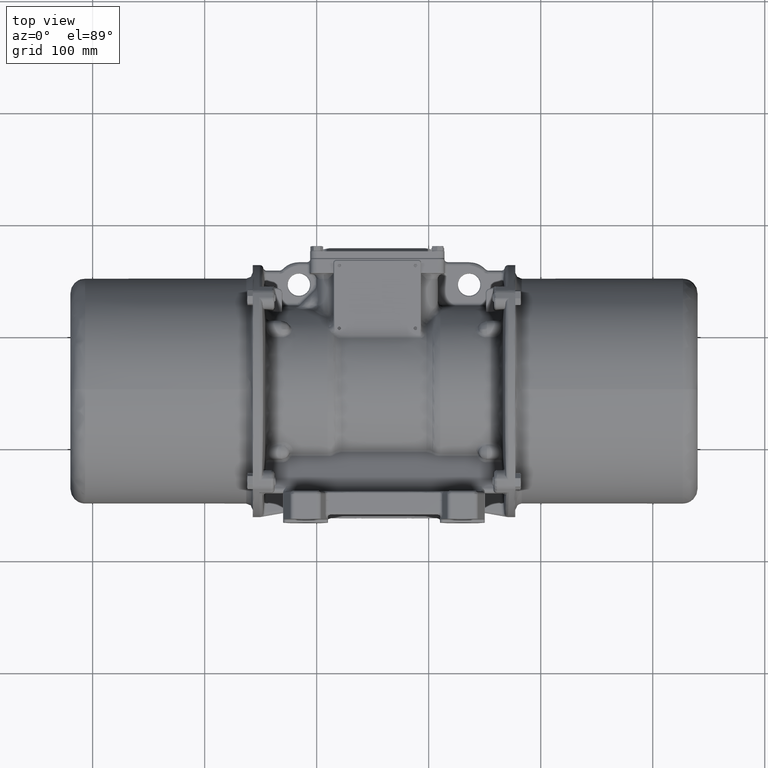
[diagram: clean part render]
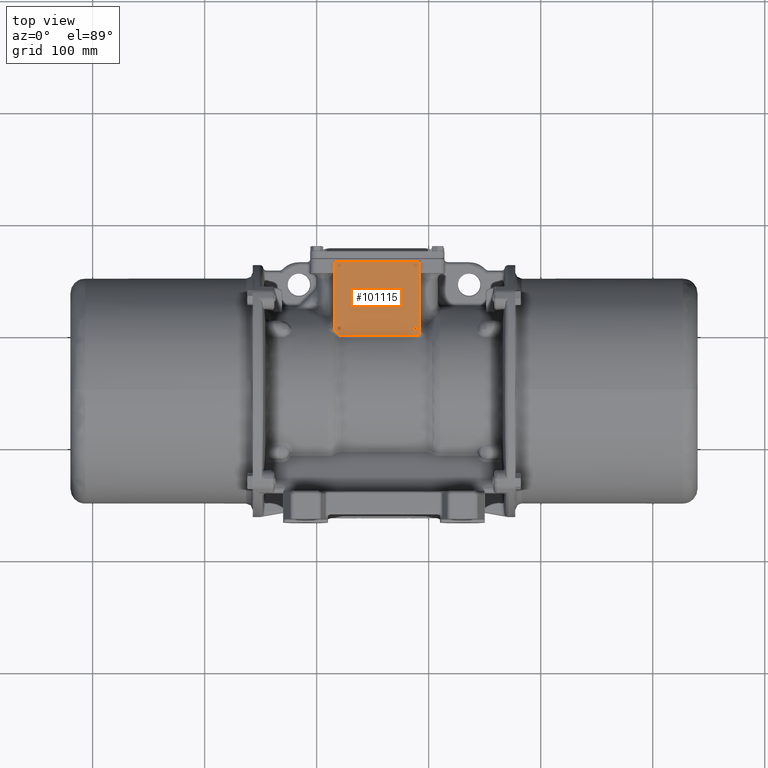
[diagram: same view with one face highlighted and labeled with its STEP entity id]
A machine part, top view. The second image highlights one B-rep face of the part: STEP entity #101115.
In plain terms, the highlighted planar face has unit normal (-0, 0, 1).
Its self-contained STEP definition (entity closure, byte-faithful):
#467 = CARTESIAN_POINT ( 'NONE',  ( -80.53508849001600800, 803.6568957535489500, -9.601440429687471600 ) ) ;
#1013 = CARTESIAN_POINT ( 'NONE',  ( -82.77088399140768600, 801.7810366123529800, -9.601440429687414700 ) ) ;
#1604 = VECTOR ( 'NONE', #80396, 1000.000000000000000 ) ;
#2164 = ORIENTED_EDGE ( 'NONE', *, *, #75230, .T. ) ;
#3264 = CARTESIAN_POINT ( 'NONE',  ( -81.83181999629019300, 800.9539418704024500, -9.601440429687413000 ) ) ;
#3411 = CARTESIAN_POINT ( 'NONE',  ( -77.90380830951508500, 798.8690620910200600, -9.601440429687413000 ) ) ;
#4085 = EDGE_CURVE ( 'NONE', #126168, #72997, #156605, .T. ) ;
#5048 = CARTESIAN_POINT ( 'NONE',  ( -81.07203659995684600, 800.2785293966828700, -9.601440429682854800 ) ) ;
#5291 = CARTESIAN_POINT ( 'NONE',  ( -78.30685451015202100, 861.3816862362867800, -9.601440429687372100 ) ) ;
#5484 = FACE_OUTER_BOUND ( 'NONE', #12657, .T. ) ;
#5575 = CARTESIAN_POINT ( 'NONE',  ( -45.90685451015202300, 865.1735898928026200, -9.601440429687413000 ) ) ;
#6486 = CARTESIAN_POINT ( 'NONE',  ( -11.90685451015204100, 859.5319471303651000, -9.601440429687471600 ) ) ;
#6860 = EDGE_CURVE ( 'NONE', #109244, #144133, #35889, .T. ) ;
#8791 = CARTESIAN_POINT ( 'NONE',  ( -10.74602947890312900, 862.3342513984875900, -9.601440429687441400 ) ) ;
#8813 = CARTESIAN_POINT ( 'NONE',  ( -81.50685451015202400, 860.9641784962984700, -9.601440429687425400 ) ) ;
#10370 = CARTESIAN_POINT ( 'NONE',  ( -13.50685451015204700, 805.3830012893064300, -9.601440429687400500 ) ) ;
#10883 = CARTESIAN_POINT ( 'NONE',  ( -8.291780507097515200, 864.9728314037266700, -9.601440429687404100 ) ) ;
#11582 = CARTESIAN_POINT ( 'NONE',  ( -10.30685451015202100, 861.1735898928026200, -9.601440429687413000 ) ) ;
#12123 = CARTESIAN_POINT ( 'NONE',  ( -10.39016351562074200, 804.5447456271471100, -9.601440429687391600 ) ) ;
#12586 = B_SPLINE_CURVE_WITH_KNOTS ( 'NONE', 3,
 ( #168162, #76844, #12123, #12688, #145480, #131904, #39918, #54623, #67117, #41593, #131350 ),
 .UNSPECIFIED., .F., .F.,
 ( 4, 1, 1, 1, 1, 1, 1, 1, 4 ),
 ( 0.005002163135060352200, 0.005627685061890766300, 0.006253206988721180300, 0.006878728915551594400, 0.007504250842382008400, 0.008129772769212423300, 0.008755294696042838200, 0.009380816622873253100, 0.01000633854970366600 ),
 .UNSPECIFIED. ) ;
#12657 = EDGE_LOOP ( 'NONE', ( #142674, #61247, #48001, #121715, #117825, #73042, #128420, #120838, #71302 ) ) ;
#12688 = CARTESIAN_POINT ( 'NONE',  ( -10.74602947890313800, 804.0129283871178800, -9.601440429687432500 ) ) ;
#16065 = EDGE_CURVE ( 'NONE', #123676, #137524, #36151, .T. ) ;
#16144 = CARTESIAN_POINT ( 'NONE',  ( -7.906854510152030000, 798.8690607036510300, -9.601440429687413000 ) ) ;
#18933 = CARTESIAN_POINT ( 'NONE',  ( -78.30685451015202100, 861.1735898928026200, -9.601440429687413000 ) ) ;
#19163 = CARTESIAN_POINT ( 'NONE',  ( -79.82066692473770800, 799.3605577013503300, -9.601440429687413000 ) ) ;
#19648 = CARTESIAN_POINT ( 'NONE',  ( -83.90858467547992900, 798.8673296134104500, -9.601440429687413000 ) ) ;
#20007 = CARTESIAN_POINT ( 'NONE',  ( -83.53976230487172900, 802.4432301094098000, -9.601440429687398700 ) ) ;
#20097 = CARTESIAN_POINT ( 'NONE',  ( -7.906854510152022900, 832.0213248357704300, -9.601440429687405900 ) ) ;
#21237 = CARTESIAN_POINT ( 'NONE',  ( -13.50685451015203000, 861.1735898928026200, -9.601440429687413000 ) ) ;
#21882 = CARTESIAN_POINT ( 'NONE',  ( -81.42354550468329000, 860.5453557032904000, -9.601440429687425400 ) ) ;
#24442 = CARTESIAN_POINT ( 'NONE',  ( -8.107714950833470300, 864.7885619442515700, -9.601440429687405900 ) ) ;
#25003 = CARTESIAN_POINT ( 'NONE',  ( -8.906854510152022900, 865.1735898928026200, -9.601440429687413000 ) ) ;
#25236 = CARTESIAN_POINT ( 'NONE',  ( -83.03671402630330100, 865.1735898928025100, -9.601440429687414700 ) ) ;
#25626 = CARTESIAN_POINT ( 'NONE',  ( -10.30685451015202100, 805.1735898928025100, -9.601440429687413000 ) ) ;
#26486 = LINE ( 'NONE', #20097, #48768 ) ;
#27946 = LINE ( 'NONE', #5575, #113291 ) ;
#28293 = CARTESIAN_POINT ( 'NONE',  ( -81.50685451015201000, 804.9641784962984700, -9.601440429687468000 ) ) ;
#28769 = CARTESIAN_POINT ( 'NONE',  ( -80.83778704389412400, 800.0545804801525900, -9.601440429687414700 ) ) ;
#30838 = CARTESIAN_POINT ( 'NONE',  ( -79.90685451015207300, 862.8152326552400400, -9.601440429687372100 ) ) ;
#33091 = VERTEX_POINT ( 'NONE', #64730 ) ;
#33174 = CARTESIAN_POINT ( 'NONE',  ( -10.30685451015202100, 860.9654935493186900, -9.601440429687459100 ) ) ;
#35849 = CARTESIAN_POINT ( 'NONE',  ( -7.906854510152022900, 864.1735898928026200, -9.601440429687405900 ) ) ;
#35889 = B_SPLINE_CURVE_WITH_KNOTS ( 'NONE', 3,
 ( #39679, #65220, #77745, #91951, #130570, #39115, #51574, #156029, #103262, #168497, #38557 ),
 .UNSPECIFIED., .F., .F.,
 ( 4, 1, 1, 1, 1, 1, 1, 1, 4 ),
 ( 0.0000000000000000000, 0.0006252703918825535700, 0.001250540783765103200, 0.001875811175647659800, 0.002501081567530212100, 0.003126351959412764800, 0.003751622351295321900, 0.004376892743177872000, 0.005002163135060424200 ),
 .UNSPECIFIED. ) ;
#36006 = CARTESIAN_POINT ( 'NONE',  ( -11.90685451015201800, 862.8152326552403800, -9.601440429687462700 ) ) ;
#36151 = LINE ( 'NONE', #40656, #1604 ) ;
#37554 = CARTESIAN_POINT ( 'NONE',  ( -11.27862053028803200, 806.6903247037990900, -9.601440429687395200 ) ) ;
#38121 = CARTESIAN_POINT ( 'NONE',  ( -12.53508849001602100, 806.6902840320561800, -9.601440429687409400 ) ) ;
#38303 = CARTESIAN_POINT ( 'NONE',  ( -83.90685451015203000, 864.3041844159878300, -9.601440429687413000 ) ) ;
#38557 = CARTESIAN_POINT ( 'NONE',  ( -78.30685451015202100, 805.1735898928025100, -9.601440429687413000 ) ) ;
#38943 = ORIENTED_EDGE ( 'NONE', *, *, #87714, .T. ) ;
#39115 = CARTESIAN_POINT ( 'NONE',  ( -79.90685451015203000, 806.8152326552397000, -9.601440429687388100 ) ) ;
#39679 = CARTESIAN_POINT ( 'NONE',  ( -81.50685451015202400, 805.1735898928025100, -9.601440429687414700 ) ) ;
#39719 = VECTOR ( 'NONE', #70750, 1000.000000000000000 ) ;
#39918 = CARTESIAN_POINT ( 'NONE',  ( -12.53508849001602100, 803.6568957535489500, -9.601440429687404100 ) ) ;
#40332 = CARTESIAN_POINT ( 'NONE',  ( -83.18433748032978800, 802.1426989466066300, -9.601440429687413000 ) ) ;
#40584 = VERTEX_POINT ( 'NONE', #149365 ) ;
#40656 = CARTESIAN_POINT ( 'NONE',  ( -45.90685451015203000, 798.8690620910200600, -9.601440429687413000 ) ) ;
#40795 = CARTESIAN_POINT ( 'NONE',  ( -78.39016351562075600, 804.5447456271471100, -9.601440429687471600 ) ) ;
#41593 = CARTESIAN_POINT ( 'NONE',  ( -13.50685451015201700, 804.9641784962984700, -9.601440429687411200 ) ) ;
#41640 = B_SPLINE_CURVE_WITH_KNOTS ( 'NONE', 3,
 ( #35849, #127305, #76696, #167452, #24442, #10883, #87551, #113625, #101131, #25003 ),
 .UNSPECIFIED., .F., .F.,
 ( 4, 2, 2, 2, 4 ),
 ( 0.0000000000000000000, 0.2500000000000000000, 0.5000000000000000000, 0.7500000000000000000, 1.000000000000000000 ),
 .UNSPECIFIED. ) ;
#41823 = VERTEX_POINT ( 'NONE', #123295 ) ;
#41842 = CARTESIAN_POINT ( 'NONE',  ( -10.30685451015202100, 861.1735898928026200, -9.601440429687413000 ) ) ;
#42888 = CARTESIAN_POINT ( 'NONE',  ( -78.30685451015202100, 805.1735898928025100, -9.601440429687413000 ) ) ;
#43788 = VERTEX_POINT ( 'NONE', #143450 ) ;
#43889 = CARTESIAN_POINT ( 'NONE',  ( -81.42354550468333200, 861.8018240823146200, -9.601440429687365000 ) ) ;
#44599 = PLANE ( 'NONE',  #115909 ) ;
#44688 = CARTESIAN_POINT ( 'NONE',  ( -80.47766592263474200, 799.7581868261108900, -9.601440429687411200 ) ) ;
#45248 = CARTESIAN_POINT ( 'NONE',  ( -79.72489656534571600, 799.3124006670849400, -9.601440429687416500 ) ) ;
#45523 = CARTESIAN_POINT ( 'NONE',  ( -83.72167981757256400, 802.5884574510626000, -9.601440429687405900 ) ) ;
#45643 = CARTESIAN_POINT ( 'NONE',  ( -12.53508849001599900, 859.6568957535489500, -9.601440429687437800 ) ) ;
#45718 = DIRECTION ( 'NONE',  ( -9.129707876087904100E-017, 4.776956283922835700E-033, 1.000000000000000000 ) ) ;
#45796 = CARTESIAN_POINT ( 'NONE',  ( -80.04221773695991300, 799.4815712410503500, -9.601440429687414700 ) ) ;
#47365 = CARTESIAN_POINT ( 'NONE',  ( -12.53508849001600600, 862.6902840320566400, -9.601440429687441400 ) ) ;
#47477 = CARTESIAN_POINT ( 'NONE',  ( -78.30685451015202100, 861.1735898928026200, -9.601440429687413000 ) ) ;
#48001 = ORIENTED_EDGE ( 'NONE', *, *, #103824, .T. ) ;
#48768 = VECTOR ( 'NONE', #159671, 1000.000000000000000 ) ;
#49395 = EDGE_LOOP ( 'NONE', ( #167137, #164945 ) ) ;
#51318 = CARTESIAN_POINT ( 'NONE',  ( -83.52182656160330500, 864.9727294521189800, -9.601440429687413000 ) ) ;
#51574 = CARTESIAN_POINT ( 'NONE',  ( -79.27862053028802300, 806.6903247037987500, -9.601440429687395200 ) ) ;
#52693 = CARTESIAN_POINT ( 'NONE',  ( -78.74602947890313900, 804.0129283871178800, -9.601440429687437800 ) ) ;
#53159 = B_SPLINE_CURVE_WITH_KNOTS ( 'NONE', 3,
 ( #71856, #162631, #72954, #164291, #151830, #137694, #113810, #74074, #21882, #8813, #99642 ),
 .UNSPECIFIED., .F., .F.,
 ( 4, 1, 1, 1, 1, 1, 1, 1, 4 ),
 ( 0.005002163135061185800, 0.005627685061891768100, 0.006253206988722348700, 0.006878728915552929200, 0.007504250842383512400, 0.008129772769214095600, 0.008755294696044677000, 0.009380816622875258500, 0.01000633854970584000 ),
 .UNSPECIFIED. ) ;
#53329 = EDGE_CURVE ( 'NONE', #33091, #43788, #27946, .T. ) ;
#54623 = CARTESIAN_POINT ( 'NONE',  ( -13.06767954140092200, 804.0127657001463600, -9.601440429687425400 ) ) ;
#55972 = B_SPLINE_CURVE_WITH_KNOTS ( 'NONE', 3,
 ( #133674, #95587, #43889, #56369, #108623, #30838, #134767, #56935, #147766, #5291, #18933 ),
 .UNSPECIFIED., .F., .F.,
 ( 4, 1, 1, 1, 1, 1, 1, 1, 4 ),
 ( 0.0000000000000000000, 0.0006252703918826488700, 0.001250540783765295600, 0.001875811175647944600, 0.002501081567530592900, 0.003126351959413241900, 0.003751622351295890400, 0.004376892743178537200, 0.005002163135061185800 ),
 .UNSPECIFIED. ) ;
#56369 = CARTESIAN_POINT ( 'NONE',  ( -81.06767954140093500, 862.3344140854588900, -9.601440429687365000 ) ) ;
#56935 = CARTESIAN_POINT ( 'NONE',  ( -78.74602947890312500, 862.3342513984871400, -9.601440429687372100 ) ) ;
#57660 = CARTESIAN_POINT ( 'NONE',  ( -83.90685451015201600, 833.4515784458193400, -9.601440429687413000 ) ) ;
#57762 = DIRECTION ( 'NONE',  ( -1.000000000000000000, -0.0000000000000000000, -0.0000000000000000000 ) ) ;
#59936 = CARTESIAN_POINT ( 'NONE',  ( -79.66086743435177200, 799.2811195134243000, -9.601440429687414700 ) ) ;
#61247 = ORIENTED_EDGE ( 'NONE', *, *, #82499, .T. ) ;
#61741 = B_SPLINE_CURVE_WITH_KNOTS ( 'NONE', 3,
 ( #142024, #10370, #102270, #75634, #38121, #115343, #37554, #62537, #63655, #101179, #25626 ),
 .UNSPECIFIED., .F., .F.,
 ( 4, 1, 1, 1, 1, 1, 1, 1, 4 ),
 ( 0.0000000000000000000, 0.0006252703918825439200, 0.001250540783765087800, 0.001875811175647631700, 0.002501081567530175200, 0.003126351959412720100, 0.003751622351295263300, 0.004376892743177808600, 0.005002163135060352200 ),
 .UNSPECIFIED. ) ;
#62537 = CARTESIAN_POINT ( 'NONE',  ( -10.74602947890312900, 806.3342513984872500, -9.601440429687375700 ) ) ;
#63143 = CARTESIAN_POINT ( 'NONE',  ( -83.90685451015201600, 802.7299133779864600, -9.601440429687405900 ) ) ;
#63167 = CARTESIAN_POINT ( 'NONE',  ( -10.30685451015202100, 805.1735898928025100, -9.601440429687413000 ) ) ;
#63655 = CARTESIAN_POINT ( 'NONE',  ( -10.39016351562075600, 805.8024341584581400, -9.601440429687409400 ) ) ;
#64730 = CARTESIAN_POINT ( 'NONE',  ( -8.906854510152022900, 865.1735898928026200, -9.601440429687413000 ) ) ;
#65220 = CARTESIAN_POINT ( 'NONE',  ( -81.50685451015196700, 805.3830012893065500, -9.601440429687389900 ) ) ;
#65535 = CARTESIAN_POINT ( 'NONE',  ( -83.78091152822173600, 864.6765487400496100, -9.601440429687413000 ) ) ;
#66410 = VERTEX_POINT ( 'NONE', #112403 ) ;
#66553 = EDGE_CURVE ( 'NONE', #144133, #109244, #78351, .T. ) ;
#67117 = CARTESIAN_POINT ( 'NONE',  ( -13.42354550468327500, 804.5453557032904000, -9.601440429687411200 ) ) ;
#68324 = EDGE_LOOP ( 'NONE', ( #126056, #38943 ) ) ;
#68977 = VERTEX_POINT ( 'NONE', #63143 ) ;
#70374 = VERTEX_POINT ( 'NONE', #47477 ) ;
#70750 = DIRECTION ( 'NONE',  ( -0.0000000000000000000, 1.000000000000000000, -0.0000000000000000000 ) ) ;
#71302 = ORIENTED_EDGE ( 'NONE', *, *, #86226, .T. ) ;
#71856 = CARTESIAN_POINT ( 'NONE',  ( -78.30685451015202100, 861.1735898928026200, -9.601440429687413000 ) ) ;
#72326 = CARTESIAN_POINT ( 'NONE',  ( -10.74602947890312300, 860.0129283871178800, -9.601440429687459100 ) ) ;
#72954 = CARTESIAN_POINT ( 'NONE',  ( -78.39016351562075600, 860.5447456271471100, -9.601440429687432500 ) ) ;
#72997 = VERTEX_POINT ( 'NONE', #107661 ) ;
#73038 = CARTESIAN_POINT ( 'NONE',  ( -79.63071981401903100, 799.2667918073440200, -9.601440429687411200 ) ) ;
#73042 = ORIENTED_EDGE ( 'NONE', *, *, #110365, .F. ) ;
#73492 = CARTESIAN_POINT ( 'NONE',  ( -11.27862053028802500, 862.6903247037994300, -9.601440429687441400 ) ) ;
#74074 = CARTESIAN_POINT ( 'NONE',  ( -81.06767954140093500, 860.0127657001463600, -9.601440429687418300 ) ) ;
#75230 = EDGE_CURVE ( 'NONE', #72997, #126168, #125103, .T. ) ;
#75634 = CARTESIAN_POINT ( 'NONE',  ( -13.06767954140092200, 806.3344140854587700, -9.601440429687389900 ) ) ;
#76696 = CARTESIAN_POINT ( 'NONE',  ( -7.933264372889187400, 864.4359048390675800, -9.601440429687405900 ) ) ;
#76844 = CARTESIAN_POINT ( 'NONE',  ( -10.30685451015202100, 804.9654935493186900, -9.601440429687411200 ) ) ;
#77504 = CARTESIAN_POINT ( 'NONE',  ( -83.88055655710489600, 864.4359979102857800, -9.601440429687413000 ) ) ;
#77537 = ORIENTED_EDGE ( 'NONE', *, *, #66553, .T. ) ;
#77745 = CARTESIAN_POINT ( 'NONE',  ( -81.42354550468323300, 805.8018240823145100, -9.601440429687381000 ) ) ;
#78351 = B_SPLINE_CURVE_WITH_KNOTS ( 'NONE', 3,
 ( #167353, #118607, #40795, #52693, #91935, #158812, #467, #92486, #156577, #28293, #157699 ),
 .UNSPECIFIED., .F., .F.,
 ( 4, 1, 1, 1, 1, 1, 1, 1, 4 ),
 ( 0.005002163135060424200, 0.005627006951475084900, 0.006251850767889743700, 0.006876694584304407800, 0.007501538400719069300, 0.008126382217133729100, 0.008751226033548394100, 0.009376069849963052100, 0.01000091366637771200 ),
 .UNSPECIFIED. ) ;
#79181 = CARTESIAN_POINT ( 'NONE',  ( -83.70609602107380500, 864.7886638958591400, -9.601440429687411200 ) ) ;
#80396 = DIRECTION ( 'NONE',  ( 1.000000000000000000, 0.0000000000000000000, 0.0000000000000000000 ) ) ;
#80779 = FACE_BOUND ( 'NONE', #49395, .T. ) ;
#82499 = EDGE_CURVE ( 'NONE', #137524, #66410, #26486, .T. ) ;
#82728 = FACE_BOUND ( 'NONE', #68324, .T. ) ;
#83322 = CARTESIAN_POINT ( 'NONE',  ( -77.90380830951508500, 798.8690620910200600, -9.601440429687413000 ) ) ;
#84839 = CARTESIAN_POINT ( 'NONE',  ( -13.06767954140093700, 860.0127657001462500, -9.601440429687485800 ) ) ;
#85405 = EDGE_CURVE ( 'NONE', #43788, #40584, #102900, .T. ) ;
#86226 = EDGE_CURVE ( 'NONE', #122876, #123676, #118549, .T. ) ;
#86263 = B_SPLINE_CURVE_WITH_KNOTS ( 'NONE', 3,
 ( #40332, #150493, #86381, #20007, #45523, #149945, #110817 ),
 .UNSPECIFIED., .F., .F.,
 ( 4, 1, 1, 1, 4 ),
 ( 0.0000000000000000000, 0.2505709687020609700, 0.5007634217009249200, 0.7505737033786770200, 1.000000000000000000 ),
 .UNSPECIFIED. ) ;
#86381 = CARTESIAN_POINT ( 'NONE',  ( -83.36041115649707900, 802.2947053309274000, -9.601440429687434300 ) ) ;
#86576 = CARTESIAN_POINT ( 'NONE',  ( -13.06767954140091500, 862.3344140854592300, -9.601440429687448500 ) ) ;
#87551 = CARTESIAN_POINT ( 'NONE',  ( -8.403895662943099900, 865.0476469108836000, -9.601440429687405900 ) ) ;
#87714 = EDGE_CURVE ( 'NONE', #94152, #70374, #55972, .T. ) ;
#90893 = FACE_BOUND ( 'NONE', #128717, .T. ) ;
#91935 = CARTESIAN_POINT ( 'NONE',  ( -79.27862053028802300, 803.6568550818059300, -9.601440429687478700 ) ) ;
#91951 = CARTESIAN_POINT ( 'NONE',  ( -81.06767954140092100, 806.3344140854584300, -9.601440429687407600 ) ) ;
#92486 = CARTESIAN_POINT ( 'NONE',  ( -81.06767954140092100, 804.0127657001463600, -9.601440429687485800 ) ) ;
#94152 = VERTEX_POINT ( 'NONE', #94266 ) ;
#94266 = CARTESIAN_POINT ( 'NONE',  ( -81.50685451015202400, 861.1735898928026200, -9.601440429687416500 ) ) ;
#94596 = B_SPLINE_CURVE_WITH_KNOTS ( 'NONE', 3,
 ( #106037, #1013, #108821, #3264, #159915, #135520 ),
 .UNSPECIFIED., .F., .F.,
 ( 4, 2, 4 ),
 ( 0.0000000000000000000, 0.5000000000000000000, 1.000000000000000000 ),
 .UNSPECIFIED. ) ;
#94632 = LINE ( 'NONE', #57660, #39719 ) ;
#95587 = CARTESIAN_POINT ( 'NONE',  ( -81.50685451015206700, 861.3830012893066600, -9.601440429687373900 ) ) ;
#96201 = ORIENTED_EDGE ( 'NONE', *, *, #4085, .T. ) ;
#98599 = CARTESIAN_POINT ( 'NONE',  ( -78.48583515675515800, 798.8722461717735500, -9.601440429687414700 ) ) ;
#98994 = CARTESIAN_POINT ( 'NONE',  ( -10.39016351562074200, 860.5447456271471100, -9.601440429687437800 ) ) ;
#99642 = CARTESIAN_POINT ( 'NONE',  ( -81.50685451015202400, 861.1735898928026200, -9.601440429687416500 ) ) ;
#101115 = ADVANCED_FACE ( 'NONE', ( #115276, #80779, #82728, #90893, #5484 ), #44599, .T. ) ;
#101124 = EDGE_CURVE ( 'NONE', #70374, #94152, #53159, .T. ) ;
#101131 = CARTESIAN_POINT ( 'NONE',  ( -8.776259986944284100, 865.1735898928026200, -9.601440429687405900 ) ) ;
#101179 = CARTESIAN_POINT ( 'NONE',  ( -10.30685451015202100, 805.3816862362864400, -9.601440429687395200 ) ) ;
#102270 = CARTESIAN_POINT ( 'NONE',  ( -13.42354550468332700, 805.8018240823146200, -9.601440429687409400 ) ) ;
#102900 = B_SPLINE_CURVE_WITH_KNOTS ( 'NONE', 3,
 ( #103012, #25236, #130319, #105263, #51318, #79181, #65535, #77504, #38303, #128637 ),
 .UNSPECIFIED., .F., .F.,
 ( 4, 2, 2, 2, 4 ),
 ( 0.0000000000000000000, 0.2500000000000000000, 0.5000000000000000000, 0.7500000000000000000, 1.000000000000000000 ),
 .UNSPECIFIED. ) ;
#103012 = CARTESIAN_POINT ( 'NONE',  ( -82.90685451015201600, 865.1735898928026200, -9.601440429687413000 ) ) ;
#103262 = CARTESIAN_POINT ( 'NONE',  ( -78.39016351562071300, 805.8024341584578000, -9.601440429687381000 ) ) ;
#103824 = EDGE_CURVE ( 'NONE', #66410, #33091, #41640, .T. ) ;
#104062 = CARTESIAN_POINT ( 'NONE',  ( -10.30685451015202100, 861.3816862362867800, -9.601440429687448500 ) ) ;
#105263 = CARTESIAN_POINT ( 'NONE',  ( -83.40990642858392300, 865.0477588205790200, -9.601440429687411200 ) ) ;
#106037 = CARTESIAN_POINT ( 'NONE',  ( -83.18433748032978800, 802.1426989466066300, -9.601440429687413000 ) ) ;
#107661 = CARTESIAN_POINT ( 'NONE',  ( -13.50685451015203000, 861.1735898928026200, -9.601440429687413000 ) ) ;
#108623 = CARTESIAN_POINT ( 'NONE',  ( -80.53508849001602200, 862.6902840320563000, -9.601440429687357900 ) ) ;
#108821 = CARTESIAN_POINT ( 'NONE',  ( -82.41961477849180500, 801.4726514633775900, -9.601440429687411200 ) ) ;
#109244 = VERTEX_POINT ( 'NONE', #137620 ) ;
#110365 = EDGE_CURVE ( 'NONE', #68977, #40584, #94632, .T. ) ;
#110382 = CARTESIAN_POINT ( 'NONE',  ( -11.27862053028803900, 859.6568550818060400, -9.601440429687452000 ) ) ;
#110441 = CARTESIAN_POINT ( 'NONE',  ( -13.50685451015203000, 861.1735898928026200, -9.601440429687413000 ) ) ;
#110817 = CARTESIAN_POINT ( 'NONE',  ( -83.90685451015201600, 802.7299133779864600, -9.601440429687405900 ) ) ;
#111492 = CARTESIAN_POINT ( 'NONE',  ( -13.50685451015203100, 860.9641784962984700, -9.601440429687460900 ) ) ;
#112403 = CARTESIAN_POINT ( 'NONE',  ( -7.906854510152022900, 864.1735898928026200, -9.601440429687405900 ) ) ;
#112542 = VERTEX_POINT ( 'NONE', #63167 ) ;
#113291 = VECTOR ( 'NONE', #57762, 1000.000000000000000 ) ;
#113625 = CARTESIAN_POINT ( 'NONE',  ( -8.644446492630757800, 865.1472919397443800, -9.601440429687407600 ) ) ;
#113810 = CARTESIAN_POINT ( 'NONE',  ( -80.53508849001600800, 859.6568957535488400, -9.601440429687425400 ) ) ;
#115276 = FACE_BOUND ( 'NONE', #165918, .T. ) ;
#115343 = CARTESIAN_POINT ( 'NONE',  ( -11.90685451015201900, 806.8152326552400400, -9.601440429687389900 ) ) ;
#115909 = AXIS2_PLACEMENT_3D ( 'NONE', #19648, #45718, #149594 ) ;
#116189 = VERTEX_POINT ( 'NONE', #120183 ) ;
#117825 = ORIENTED_EDGE ( 'NONE', *, *, #85405, .T. ) ;
#118549 = B_SPLINE_CURVE_WITH_KNOTS ( 'NONE', 3,
 ( #119106, #28769, #44688, #45796, #19163, #45248, #59936, #73038, #150778, #98599, #83322 ),
 .UNSPECIFIED., .F., .F.,
 ( 4, 1, 1, 1, 2, 2, 4 ),
 ( 0.0000000000000000000, 0.2500000000000166000, 0.3750000000000513500, 0.4375000000000686700, 0.4687500000000551800, 0.5000000000000416300, 1.000000000000000000 ),
 .UNSPECIFIED. ) ;
#118607 = CARTESIAN_POINT ( 'NONE',  ( -78.30685451015202100, 804.9654935493186900, -9.601440429687466200 ) ) ;
#118824 = EDGE_CURVE ( 'NONE', #41823, #68977, #86263, .T. ) ;
#119106 = CARTESIAN_POINT ( 'NONE',  ( -81.07203659995684600, 800.2785293966828700, -9.601440429682854800 ) ) ;
#120183 = CARTESIAN_POINT ( 'NONE',  ( -13.50685451015203300, 805.1735898928025100, -9.601440429687413000 ) ) ;
#120838 = ORIENTED_EDGE ( 'NONE', *, *, #155521, .T. ) ;
#121715 = ORIENTED_EDGE ( 'NONE', *, *, #53329, .T. ) ;
#122876 = VERTEX_POINT ( 'NONE', #5048 ) ;
#123295 = CARTESIAN_POINT ( 'NONE',  ( -83.18433748032978800, 802.1426989466066300, -9.601440429687413000 ) ) ;
#123676 = VERTEX_POINT ( 'NONE', #3411 ) ;
#125103 = B_SPLINE_CURVE_WITH_KNOTS ( 'NONE', 3,
 ( #110441, #149571, #125220, #86576, #47365, #36006, #73492, #8791, #155708, #104062, #11582 ),
 .UNSPECIFIED., .F., .F.,
 ( 4, 1, 1, 1, 1, 1, 1, 1, 4 ),
 ( 0.0000000000000000000, 0.0006252703918826347800, 0.001250540783765269600, 0.001875811175647900100, 0.002501081567530535600, 0.003126351959413169900, 0.003751622351295800200, 0.004376892743178435700, 0.005002163135061070400 ),
 .UNSPECIFIED. ) ;
#125220 = CARTESIAN_POINT ( 'NONE',  ( -13.42354550468333100, 861.8018240823149700, -9.601440429687448500 ) ) ;
#126056 = ORIENTED_EDGE ( 'NONE', *, *, #101124, .T. ) ;
#126168 = VERTEX_POINT ( 'NONE', #41842 ) ;
#127305 = CARTESIAN_POINT ( 'NONE',  ( -7.906854510152024700, 864.3034494089629300, -9.601440429687405900 ) ) ;
#128420 = ORIENTED_EDGE ( 'NONE', *, *, #118824, .F. ) ;
#128637 = CARTESIAN_POINT ( 'NONE',  ( -83.90685451015201600, 864.1735898928026200, -9.601440429687398700 ) ) ;
#128717 = EDGE_LOOP ( 'NONE', ( #96201, #2164 ) ) ;
#130319 = CARTESIAN_POINT ( 'NONE',  ( -83.16916945645033400, 865.1471800300490700, -9.601440429687411200 ) ) ;
#130570 = CARTESIAN_POINT ( 'NONE',  ( -80.53508849001602200, 806.6902840320558400, -9.601440429687373900 ) ) ;
#131350 = CARTESIAN_POINT ( 'NONE',  ( -13.50685451015203300, 805.1735898928025100, -9.601440429687413000 ) ) ;
#131904 = CARTESIAN_POINT ( 'NONE',  ( -11.90685451015204800, 803.5319471303651000, -9.601440429687432500 ) ) ;
#133674 = CARTESIAN_POINT ( 'NONE',  ( -81.50685451015202400, 861.1735898928026200, -9.601440429687416500 ) ) ;
#134767 = CARTESIAN_POINT ( 'NONE',  ( -79.27862053028803800, 862.6903247037990900, -9.601440429687379200 ) ) ;
#135520 = CARTESIAN_POINT ( 'NONE',  ( -81.07203659995684600, 800.2785293966828700, -9.601440429682854800 ) ) ;
#137524 = VERTEX_POINT ( 'NONE', #16144 ) ;
#137620 = CARTESIAN_POINT ( 'NONE',  ( -81.50685451015202400, 805.1735898928025100, -9.601440429687414700 ) ) ;
#137694 = CARTESIAN_POINT ( 'NONE',  ( -79.90685451015201600, 859.5319471303651000, -9.601440429687425400 ) ) ;
#137961 = EDGE_CURVE ( 'NONE', #112542, #116189, #12586, .T. ) ;
#142024 = CARTESIAN_POINT ( 'NONE',  ( -13.50685451015203300, 805.1735898928025100, -9.601440429687413000 ) ) ;
#142674 = ORIENTED_EDGE ( 'NONE', *, *, #16065, .T. ) ;
#142919 = EDGE_CURVE ( 'NONE', #116189, #112542, #61741, .T. ) ;
#143450 = CARTESIAN_POINT ( 'NONE',  ( -82.90685451015201600, 865.1735898928026200, -9.601440429687413000 ) ) ;
#144133 = VERTEX_POINT ( 'NONE', #42888 ) ;
#145480 = CARTESIAN_POINT ( 'NONE',  ( -11.27862053028802500, 803.6568550818059300, -9.601440429687411200 ) ) ;
#146176 = CARTESIAN_POINT ( 'NONE',  ( -10.30685451015202100, 861.1735898928026200, -9.601440429687413000 ) ) ;
#147766 = CARTESIAN_POINT ( 'NONE',  ( -78.39016351562075600, 861.8024341584581400, -9.601440429687365000 ) ) ;
#149365 = CARTESIAN_POINT ( 'NONE',  ( -83.90685451015201600, 864.1735898928026200, -9.601440429687398700 ) ) ;
#149571 = CARTESIAN_POINT ( 'NONE',  ( -13.50685451015206300, 861.3830012893066600, -9.601440429687457400 ) ) ;
#149594 = DIRECTION ( 'NONE',  ( 1.000000000000000000, 0.0000000000000000000, 9.129707876087904100E-017 ) ) ;
#149945 = CARTESIAN_POINT ( 'NONE',  ( -83.84490188008770400, 802.6831818604168800, -9.601440429687413000 ) ) ;
#150493 = CARTESIAN_POINT ( 'NONE',  ( -83.24277902243697700, 802.1937560527471800, -9.601440429687413000 ) ) ;
#150778 = CARTESIAN_POINT ( 'NONE',  ( -79.05008740209694900, 798.9995833626121600, -9.601440429687413000 ) ) ;
#151830 = CARTESIAN_POINT ( 'NONE',  ( -79.27862053028802300, 859.6568550818060400, -9.601440429687418300 ) ) ;
#155521 = EDGE_CURVE ( 'NONE', #41823, #122876, #94596, .T. ) ;
#155708 = CARTESIAN_POINT ( 'NONE',  ( -10.39016351562074900, 861.8024341584584800, -9.601440429687462700 ) ) ;
#156029 = CARTESIAN_POINT ( 'NONE',  ( -78.74602947890308300, 806.3342513984869100, -9.601440429687407600 ) ) ;
#156577 = CARTESIAN_POINT ( 'NONE',  ( -81.42354550468327500, 804.5453557032904000, -9.601440429687459100 ) ) ;
#156605 = B_SPLINE_CURVE_WITH_KNOTS ( 'NONE', 3,
 ( #146176, #33174, #98994, #72326, #110382, #6486, #45643, #84839, #161992, #111492, #21237 ),
 .UNSPECIFIED., .F., .F.,
 ( 4, 1, 1, 1, 1, 1, 1, 1, 4 ),
 ( 0.005002163135061070400, 0.005627006951475716300, 0.006251850767890363000, 0.006876694584305006300, 0.007501538400719653100, 0.008126382217134299800, 0.008751226033548942200, 0.009376069849963586400, 0.01000091366637823400 ),
 .UNSPECIFIED. ) ;
#157699 = CARTESIAN_POINT ( 'NONE',  ( -81.50685451015202400, 805.1735898928025100, -9.601440429687414700 ) ) ;
#158812 = CARTESIAN_POINT ( 'NONE',  ( -79.90685451015203000, 803.5319471303651000, -9.601440429687466200 ) ) ;
#159671 = DIRECTION ( 'NONE',  ( 0.0000000000000000000, 1.000000000000000000, 0.0000000000000000000 ) ) ;
#159915 = CARTESIAN_POINT ( 'NONE',  ( -81.48059306714547700, 800.6423527803337900, -9.601440429687413000 ) ) ;
#161992 = CARTESIAN_POINT ( 'NONE',  ( -13.42354550468328600, 860.5453557032905100, -9.601440429687437800 ) ) ;
#162631 = CARTESIAN_POINT ( 'NONE',  ( -78.30685451015202100, 860.9654935493186900, -9.601440429687418300 ) ) ;
#162953 = ORIENTED_EDGE ( 'NONE', *, *, #6860, .T. ) ;
#164291 = CARTESIAN_POINT ( 'NONE',  ( -78.74602947890312500, 860.0129283871178800, -9.601440429687411200 ) ) ;
#164945 = ORIENTED_EDGE ( 'NONE', *, *, #142919, .T. ) ;
#165918 = EDGE_LOOP ( 'NONE', ( #77537, #162953 ) ) ;
#167137 = ORIENTED_EDGE ( 'NONE', *, *, #137961, .T. ) ;
#167353 = CARTESIAN_POINT ( 'NONE',  ( -78.30685451015202100, 805.1735898928025100, -9.601440429687413000 ) ) ;
#167452 = CARTESIAN_POINT ( 'NONE',  ( -8.032685582392311100, 864.6766418112675900, -9.601440429687407600 ) ) ;
#168162 = CARTESIAN_POINT ( 'NONE',  ( -10.30685451015202100, 805.1735898928025100, -9.601440429687413000 ) ) ;
#168497 = CARTESIAN_POINT ( 'NONE',  ( -78.30685451015197900, 805.3816862362861000, -9.601440429687388100 ) ) ;